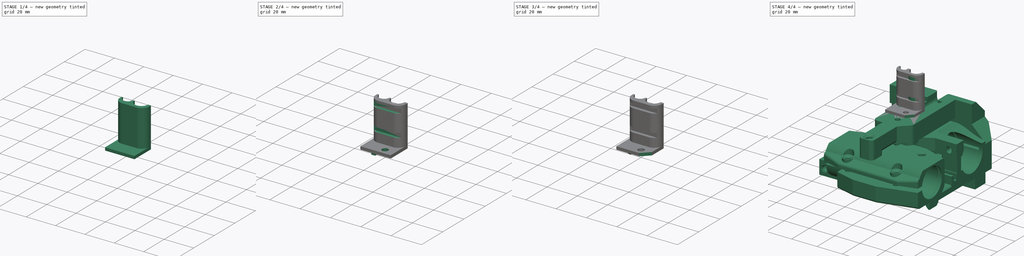
[diagram: build sequence overview — one tinted view per stage of 4, left to right]
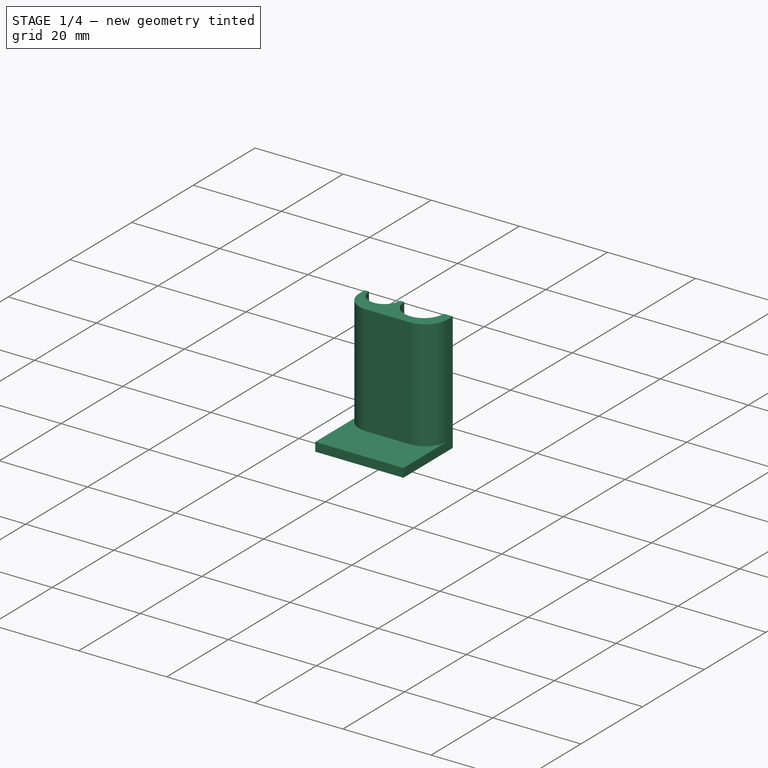
[diagram: stage 1 of 4 — iso view after this stage's code; geometry added in this stage tinted green]
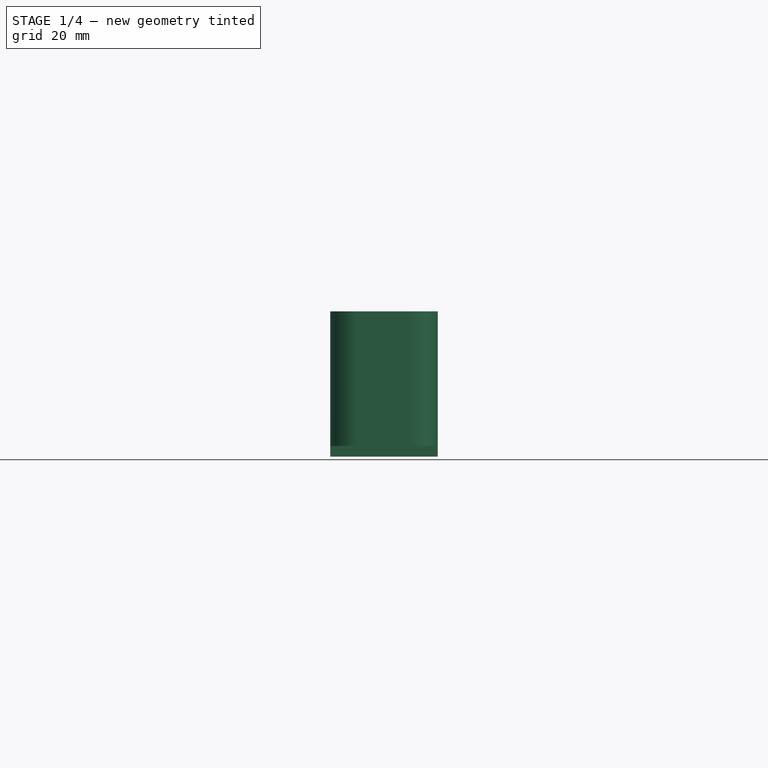
[diagram: stage 1 of 4 — front view after this stage's code; geometry added in this stage tinted green]
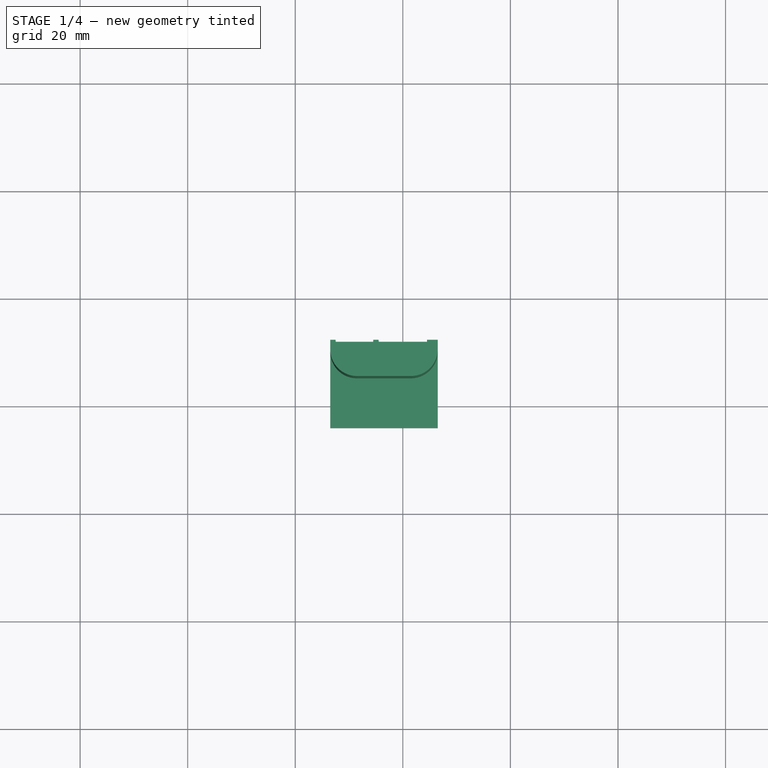
[diagram: stage 1 of 4 — top view after this stage's code; geometry added in this stage tinted green]
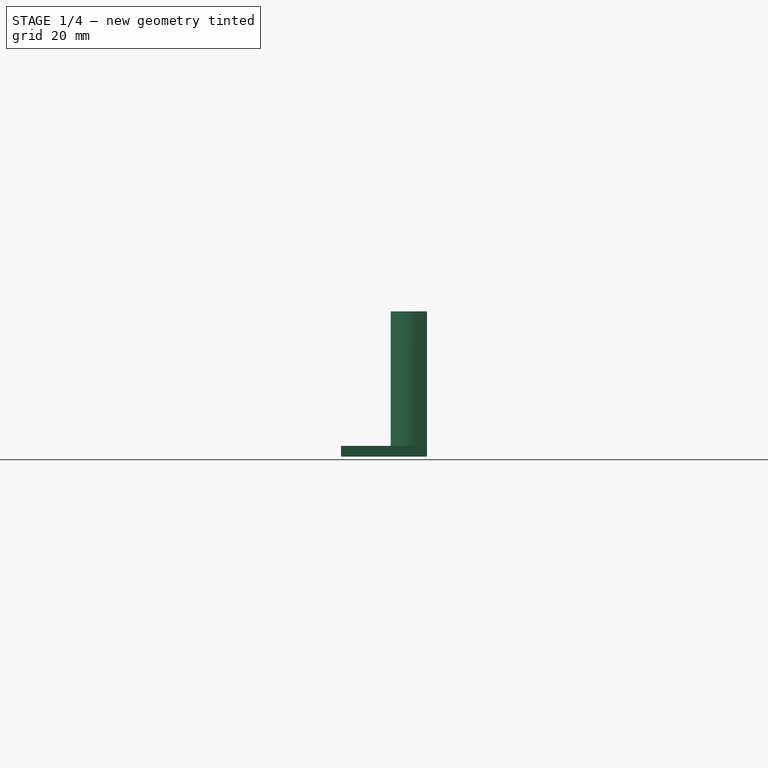
[diagram: stage 1 of 4 — right view after this stage's code; geometry added in this stage tinted green]
FCSTD DOCUMENT  (FreeCAD 0.17R13528 (Git))
Label: extruder_harness_cable_guide_v0.1
License: All rights reserved
LicenseURL: http://en.wikipedia.org/wiki/All_rights_reserved
objects: Sketcher::SketchObject×7, PartDesign::Pocket×4, Part::FeaturePython×2, App::FeaturePython×2, PartDesign::Pad×2, PartDesign::Chamfer×2, PartDesign::Fillet×2, PartDesign::Body×1
note: 26 computed .brp shape members not serialized (recipe doc carries the construction recipe); baked Part::Feature solids carry a one-line shape summary decoded from their .brp

FEATURE [App::FeaturePython] circularEdge_001  label="circularEdge_001__extruder_harness_cable_guide_001"  # a2plus constraint (typed FeaturePython)
  Object1 = b_x_carriage_cover_v1_6_1_001_
  Object2 = b_extruder_harness_cable_guide_001_
  ParentTreeObject = -> b_x_carriage_cover_v1_6_1_001_
  SubElement1 = Edge1492
  SubElement2 = Edge83
  Type = circularEdge
  directionConstraint = 0
  lockRotation = false
  offset = 0
FEATURE [App::FeaturePython] circularEdge_001_mirror  label="circularEdge_001__x_carriage_cover_v1.6.1_001"  # a2plus constraint (typed FeaturePython)
  Object1 = b_x_carriage_cover_v1_6_1_001_
  Object2 = b_extruder_harness_cable_guide_001_
  ParentTreeObject = -> b_extruder_harness_cable_guide_001_
  SubElement1 = Edge1492
  SubElement2 = Edge83
  Type = circularEdge
  directionConstraint = 0
  lockRotation = false
  offset = 0
FEATURE [PartDesign::Pad] Pad
  Length = 27
  Length2 = 100
  Profile = -> Sketch
  Refine = true
  Type = 0
FEATURE [Sketcher::SketchObject] Sketch001
  MapMode = 5
  Placement = pos=(0,0,27) rot=(0,0,1;0rad)
  Support = -> [Pad]
  sketch-geometry (2):
    g0: Circle CenterX=0 CenterY=12 CenterZ=0 NormalX=0 NormalY=0 NormalZ=1 AngleXU=0 Radius=4.5
    g1: Circle CenterX=-9 CenterY=12 CenterZ=0 NormalX=0 NormalY=0 NormalZ=1 AngleXU=0 Radius=3.5
  constraints (6):
    c: PointOnObject(g0,g-2)
    c: DistanceY(g0) = 12
    c: Radius(g1) = 3.5
    c: Radius(g0) = 4.5
    c: DistanceX(g1) = -9
    c: DistanceY(g1) = 12
FEATURE [PartDesign::Pocket] Pocket
  BaseFeature = -> Pad
  Length = 22
  Length2 = 100
  Profile = -> Sketch001
  Refine = true
  Type = 0
FEATURE [Sketcher::SketchObject] Sketch002
  MapMode = 5
  Placement = pos=(0,0,27) rot=(0,0,1;0rad)
  Support = -> [Pocket]
  sketch-geometry (7):
    g0: ArcOfCircle CenterX=-8.5 CenterY=10.25 CenterZ=0 NormalX=0 NormalY=0 NormalZ=1 AngleXU=0 Radius=5 StartAngle=3.14159 EndAngle=4.71239
    g1: ArcOfCircle CenterX=1.5 CenterY=10.25 CenterZ=0 NormalX=0 NormalY=0 NormalZ=1 AngleXU=0 Radius=5 StartAngle=4.71239 EndAngle=6.28319
    g2: LineSegment StartX=1.5 StartY=5.25 StartZ=0 EndX=-8.50001 EndY=5.25 EndZ=0
    g3: LineSegment StartX=6.5 StartY=10.25 StartZ=0 EndX=6.5 EndY=-4 EndZ=0
    g4: LineSegment StartX=6.5 StartY=-4 StartZ=0 EndX=-13.5 EndY=-4 EndZ=0
    g5: LineSegment StartX=-13.5 StartY=-4 StartZ=0 EndX=-13.5 EndY=10.25 EndZ=0
    g6: LineSegment [constr] StartX=1.5 StartY=10.25 StartZ=0 EndX=-8.5 EndY=10.25 EndZ=0
  constraints (20):
    c: Coincident(g2,g1)
    c: DistanceX(g1) = 1.5
    c: DistanceY(g1) = 10.25
    c: Vertical(g3)
    c: Coincident(g3,g4)
    c: Horizontal(g4)
    c: Coincident(g4,g5)
    c: Vertical(g5)
    c: Coincident(g6,g1)
    c: Coincident(g6,g0)
    c: Coincident(g0,g2)
    c: Tangent(g2,g0)
    c: Tangent(g2,g1)
    c: DistanceX(g3) = 6.5
    c: DistanceY(g3) = -4
    c: DistanceX(g4,g4) = 20
    c: Tangent(g5,g0) = 1.5708
    c: Tangent(g1,g3) = 1.5708
    c: Horizontal(g2)
    c: Horizontal(g6)
FEATURE [PartDesign::Pocket] Pocket001
  BaseFeature = -> Pocket
  Length = 25
  Length2 = 100
  Profile = -> Sketch002
  Refine = true
  Type = 0
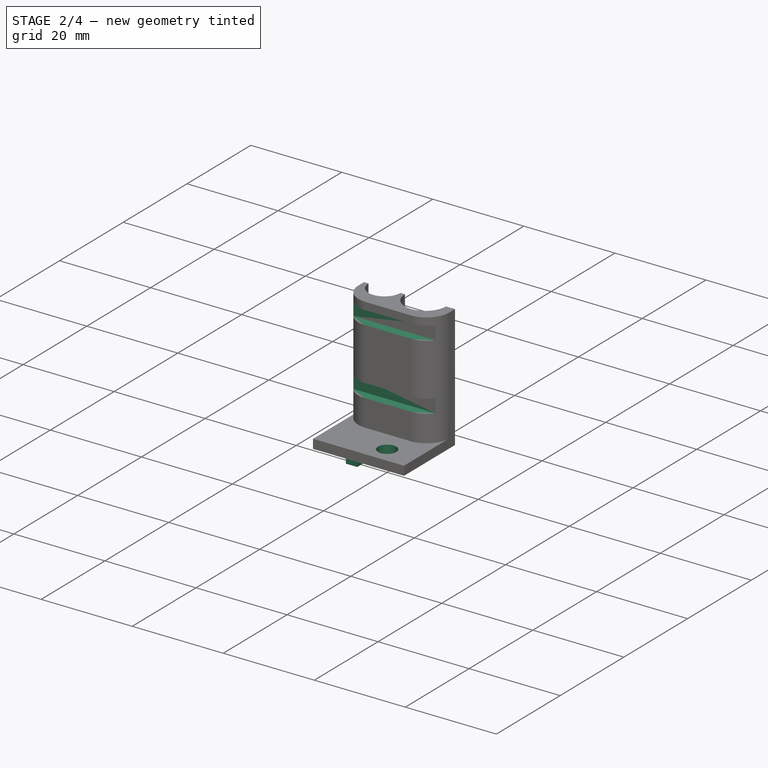
[diagram: stage 2 of 4 — iso view after this stage's code; geometry added in this stage tinted green]
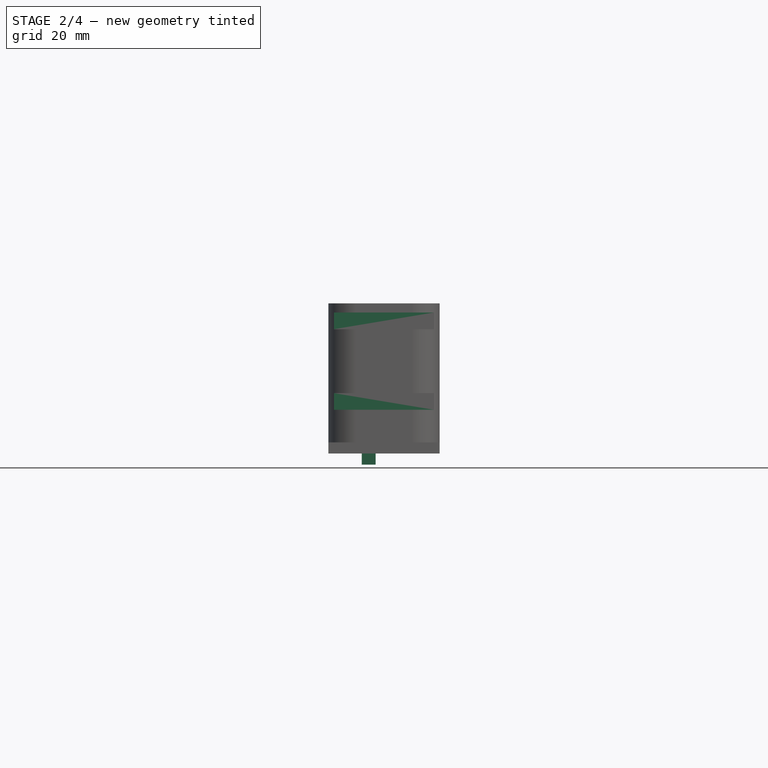
[diagram: stage 2 of 4 — front view after this stage's code; geometry added in this stage tinted green]
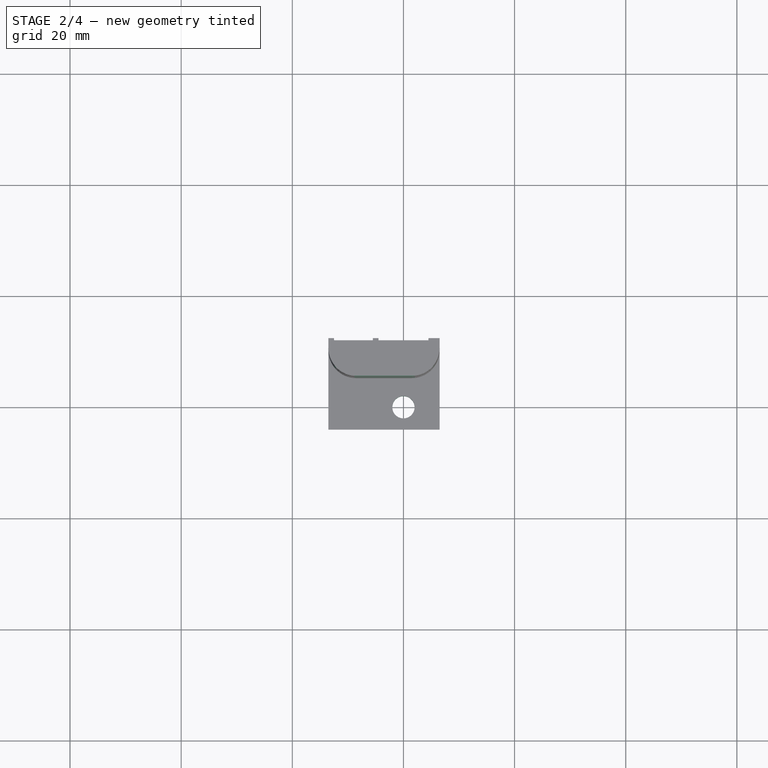
[diagram: stage 2 of 4 — top view after this stage's code; geometry added in this stage tinted green]
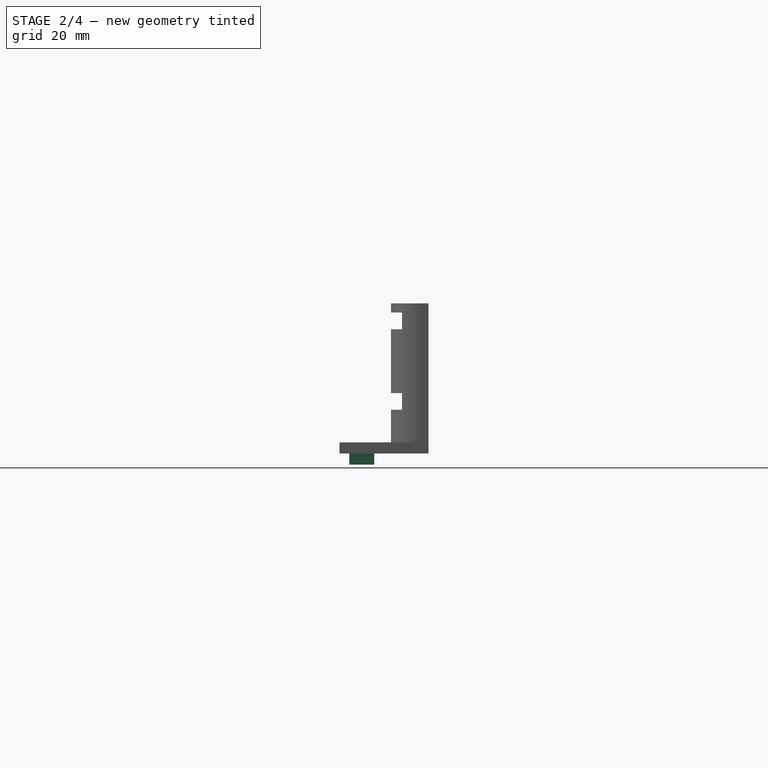
[diagram: stage 2 of 4 — right view after this stage's code; geometry added in this stage tinted green]
FEATURE [Sketcher::SketchObject] Sketch003
  MapMode = 5
  Placement = pos=(0,0,2) rot=(0,0,1;0rad)
  Support = -> [Pocket001]
FEATURE [Sketcher::SketchObject] Sketch004
  MapMode = 5
  Placement = pos=(-13.5,0,0) rot=(0.57735,-0.57735,-0.57735;2.0944rad)
  Support = -> [Pocket001]
  sketch-geometry (12):
    g0: LineSegment StartX=-5 StartY=10.8635 StartZ=0 EndX=-7.25 EndY=10.8635 EndZ=0
    g1: LineSegment StartX=-7.25 StartY=10.8635 StartZ=0 EndX=-7.25 EndY=7.86353 EndZ=0
    g2: LineSegment StartX=-7.25 StartY=7.86353 StartZ=0 EndX=-5 EndY=7.86353 EndZ=0
    g3: LineSegment StartX=-5 StartY=7.86353 StartZ=0 EndX=-5 EndY=10.8635 EndZ=0
    g4: LineSegment StartX=-5 StartY=25.3635 StartZ=0 EndX=-7.25 EndY=25.3635 EndZ=0
    g5: LineSegment StartX=-7.25 StartY=25.3635 StartZ=0 EndX=-7.25 EndY=22.3635 EndZ=0
    g6: LineSegment StartX=-7.25 StartY=22.3635 StartZ=0 EndX=-5 EndY=22.3635 EndZ=0
    g7: LineSegment StartX=-5 StartY=22.3635 StartZ=0 EndX=-5 EndY=25.3635 EndZ=0
    g8: LineSegment [constr] StartX=-7.25 StartY=22.3635 StartZ=0 EndX=-5 EndY=22.3635 EndZ=0
    g9: LineSegment [constr] StartX=-5 StartY=22.3635 StartZ=0 EndX=-5 EndY=10.8635 EndZ=0
    g10: LineSegment [constr] StartX=-5 StartY=10.8635 StartZ=0 EndX=-7.25 EndY=10.8635 EndZ=0
    g11: LineSegment [constr] StartX=-7.25 StartY=10.8635 StartZ=0 EndX=-7.25 EndY=22.3635 EndZ=0
  constraints (32):
    c: Coincident(g0,g1)
    c: Coincident(g1,g2)
    c: Coincident(g2,g3)
    c: Coincident(g3,g0)
    c: Horizontal(g0)
    c: Horizontal(g2)
    c: Vertical(g1)
    c: Vertical(g3)
    c: Coincident(g4,g5)
    c: Coincident(g5,g6)
    c: Coincident(g6,g7)
    c: Coincident(g7,g4)
    c: Horizontal(g4)
    c: Horizontal(g6)
    c: Vertical(g5)
    c: Vertical(g7)
    c: DistanceX(g6) = -5
    c: DistanceY(g6) = 22.3635
    c: DistanceX(g6,g6) = 2.25
    c: DistanceY(g7,g7) = 3
    c: Equal(g3,g7)
    c: Equal(g4,g0)
    c: Coincident(g8,g9)
    c: Coincident(g9,g10)
    c: Coincident(g10,g11)
    c: Coincident(g11,g8)
    c: Vertical(g9)
    c: Coincident(g8,g5)
    c: Coincident(g9,g0)
    c: Coincident(g0,g10)
    c: Coincident(g6,g8)
    c: DistanceY(g9,g9) = 11.5
FEATURE [PartDesign::Pocket] Pocket002
  BaseFeature = -> Pocket001
  Length = 5
  Length2 = 100
  Profile = -> Sketch004
  Refine = true
  Type = 1
FEATURE [Sketcher::SketchObject] Sketch005
  MapMode = 5
  Placement = pos=(0,0,0) rot=(1,0,0;3.14159rad)
  sketch-geometry (1):
    g0: Circle CenterX=0 CenterY=0 CenterZ=0 NormalX=0 NormalY=0 NormalZ=1 AngleXU=0 Radius=2
  constraints (2):
    c: Coincident(g0,g-1)
    c: Radius(g0) = 2
FEATURE [Sketcher::SketchObject] Sketch006
  MapMode = 5
  Placement = pos=(0,0,0) rot=(1,0,0;3.14159rad)
  sketch-geometry (4):
    g0: LineSegment StartX=-7.5 StartY=2.25 StartZ=0 EndX=-5 EndY=2.25 EndZ=0
    g1: LineSegment StartX=-5 StartY=2.25 StartZ=0 EndX=-5 EndY=-2.25 EndZ=0
    g2: LineSegment StartX=-5 StartY=-2.25 StartZ=0 EndX=-7.5 EndY=-2.25 EndZ=0
    g3: LineSegment StartX=-7.5 StartY=-2.25 StartZ=0 EndX=-7.5 EndY=2.25 EndZ=0
  constraints (12):
    c: Coincident(g0,g1)
    c: Coincident(g1,g2)
    c: Coincident(g2,g3)
    c: Coincident(g3,g0)
    c: Horizontal(g0)
    c: Horizontal(g2)
    c: Vertical(g1)
    c: Vertical(g3)
    c: DistanceX(g1) = -5
    c: DistanceY(g1) = -2.25
    c: DistanceY(g1,g1) = 4.5
    c: DistanceX(g0,g0) = 2.5
FEATURE [PartDesign::Pocket] Pocket003
  BaseFeature = -> Pocket002
  Length = 5
  Length2 = 100
  Profile = -> Sketch005
  Refine = true
  Type = 0
FEATURE [PartDesign::Pad] Pad001
  BaseFeature = -> Pocket003
  Length = 2
  Length2 = 100
  Profile = -> Sketch006
  Refine = true
  Type = 0
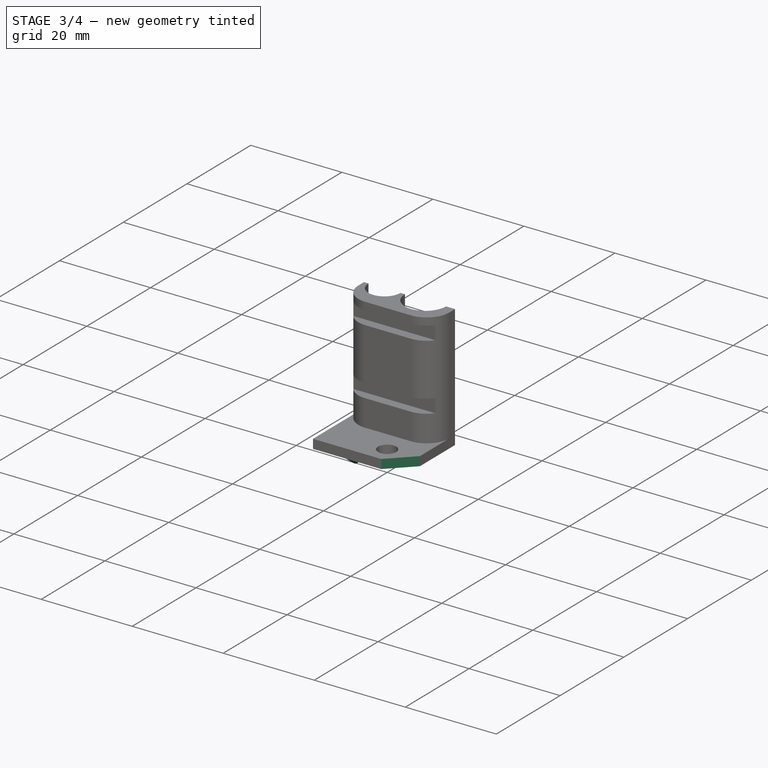
[diagram: stage 3 of 4 — iso view after this stage's code; geometry added in this stage tinted green]
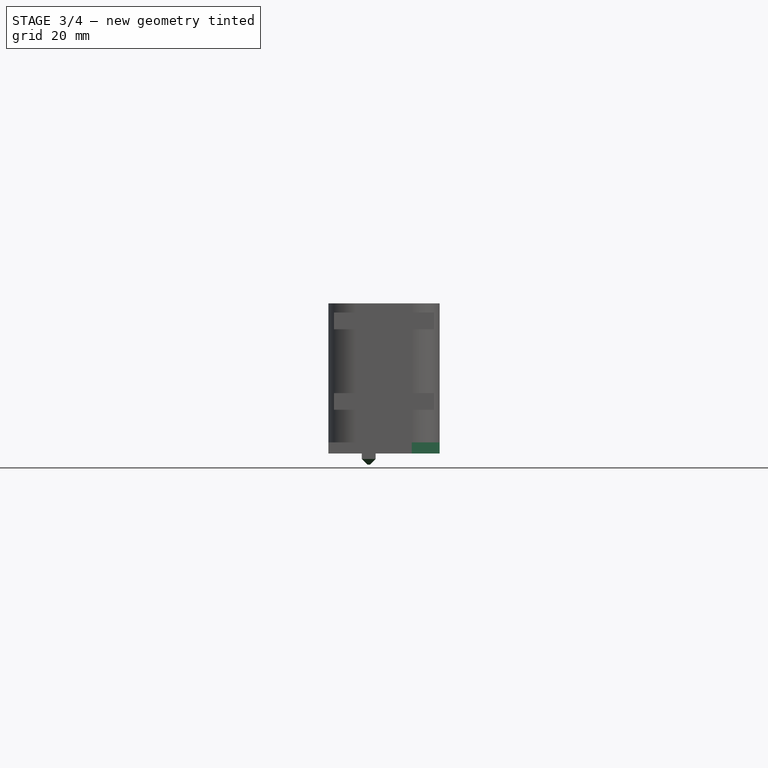
[diagram: stage 3 of 4 — front view after this stage's code; geometry added in this stage tinted green]
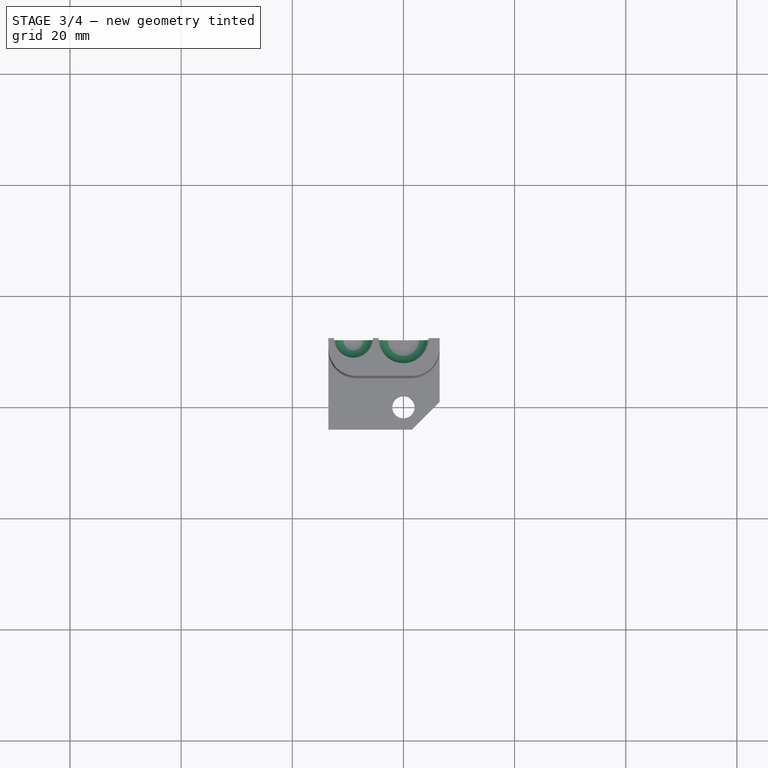
[diagram: stage 3 of 4 — top view after this stage's code; geometry added in this stage tinted green]
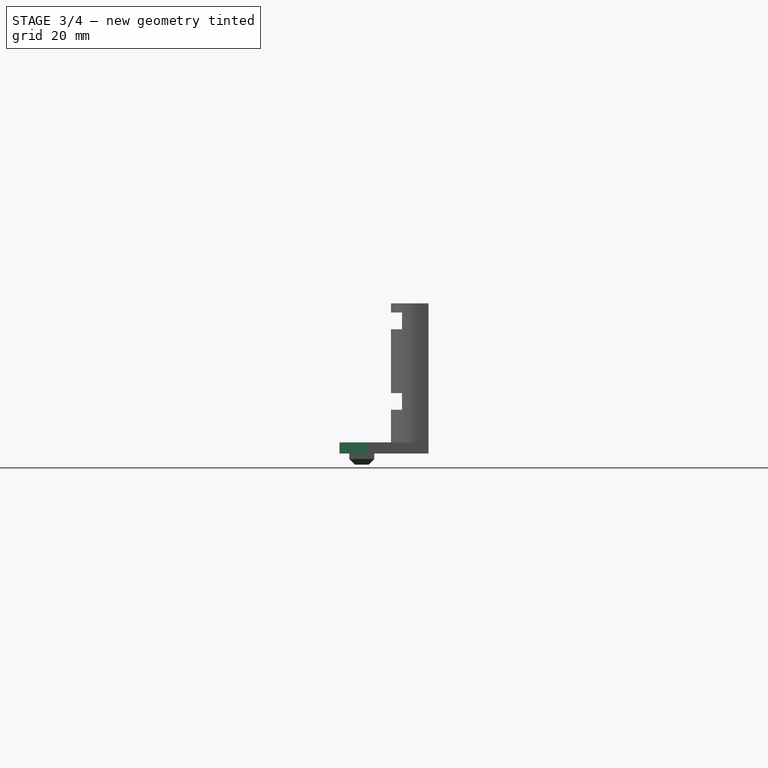
[diagram: stage 3 of 4 — right view after this stage's code; geometry added in this stage tinted green]
FEATURE [PartDesign::Chamfer] Chamfer
  Base = -> Pad001 [Face20]
  BaseFeature = -> Pad001
  Size = 1
FEATURE [PartDesign::Chamfer] Chamfer001
  Base = -> Chamfer [Edge26]
  BaseFeature = -> Chamfer
  Size = 5
FEATURE [PartDesign::Fillet] Fillet
  Base = -> Chamfer001 [Edge70,Edge69]
  BaseFeature = -> Chamfer001
  Radius = 3
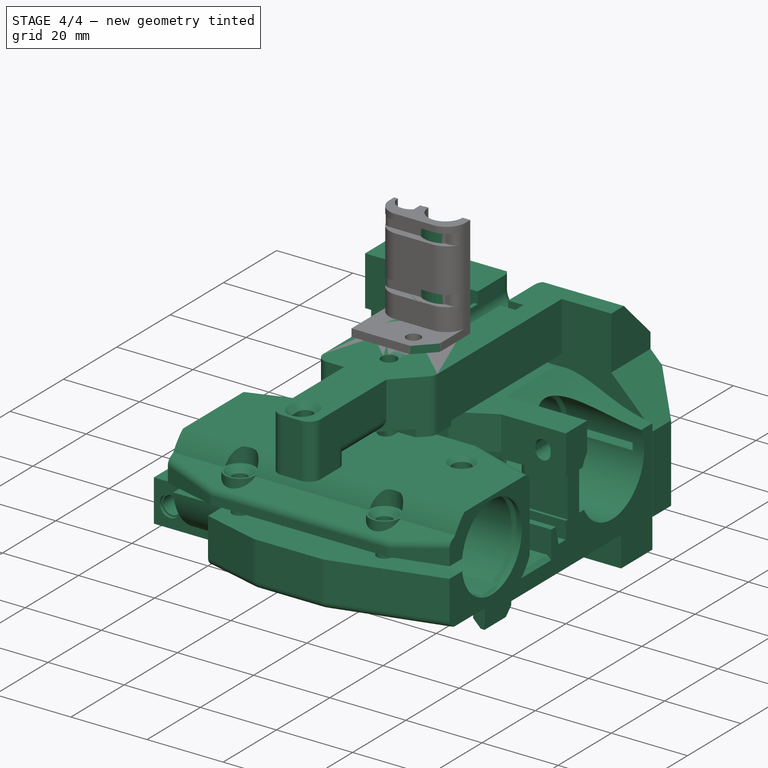
[diagram: stage 4 of 4 — iso view after this stage's code; geometry added in this stage tinted green]
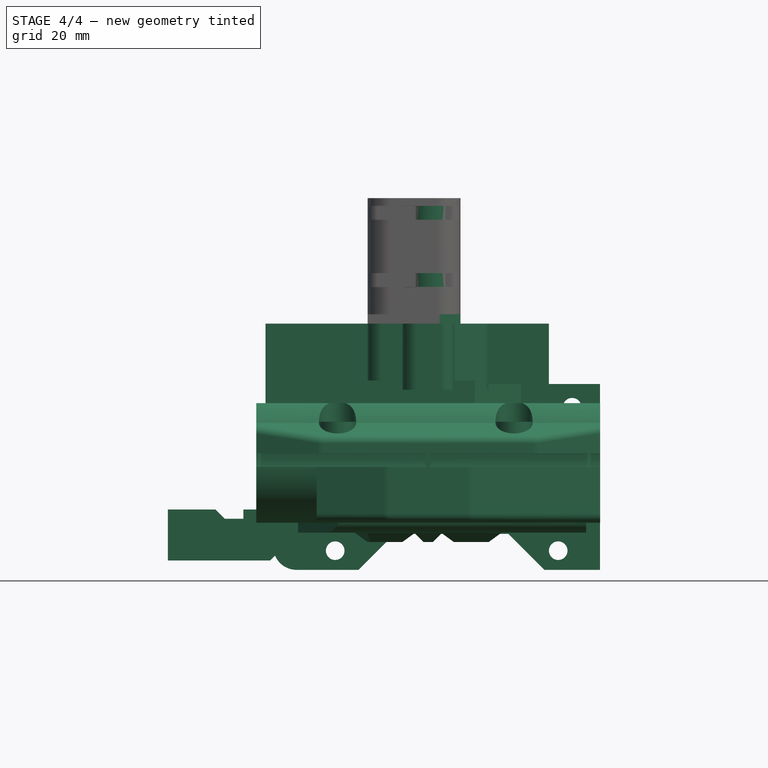
[diagram: stage 4 of 4 — front view after this stage's code; geometry added in this stage tinted green]
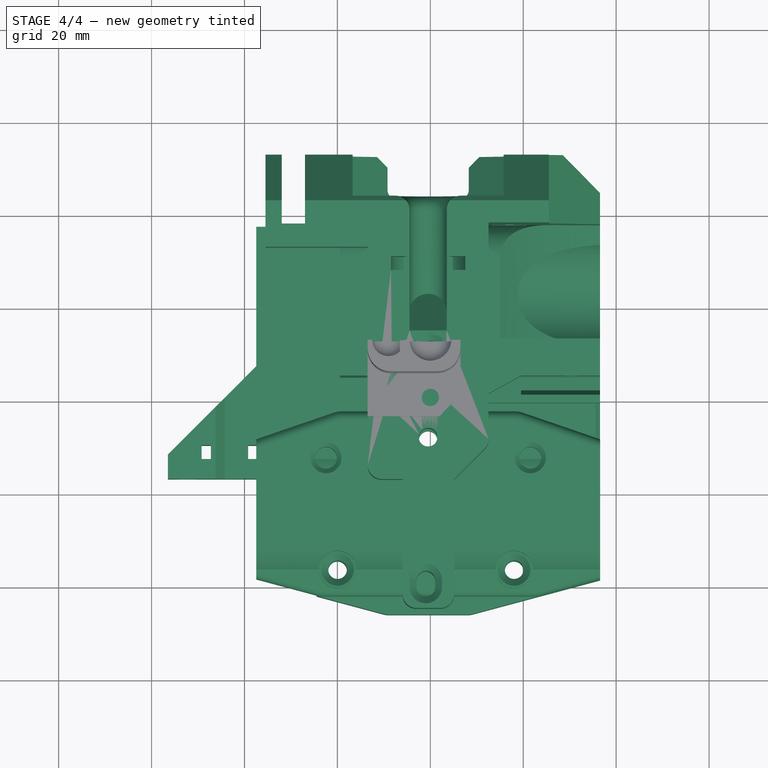
[diagram: stage 4 of 4 — top view after this stage's code; geometry added in this stage tinted green]
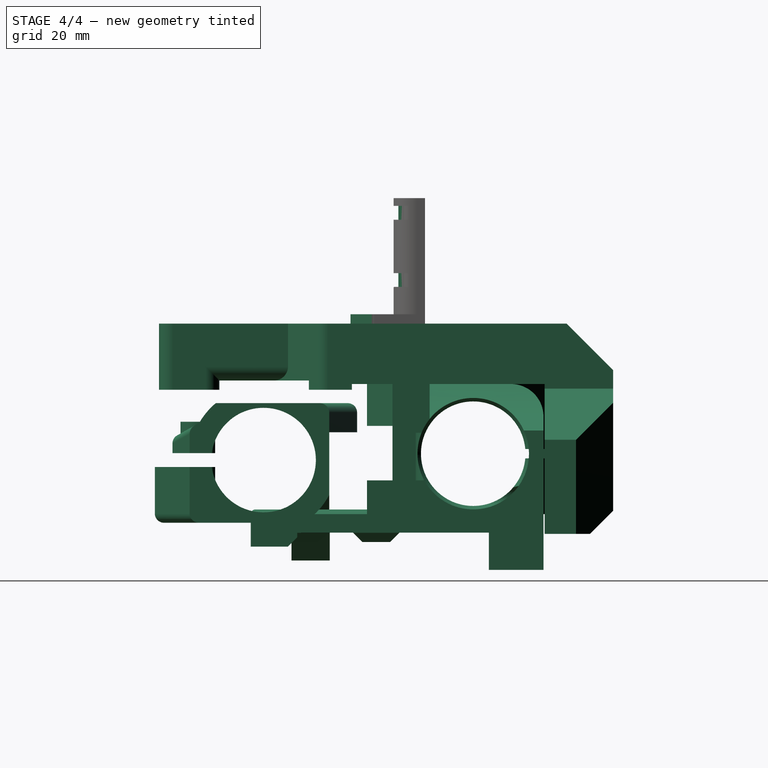
[diagram: stage 4 of 4 — right view after this stage's code; geometry added in this stage tinted green]
FEATURE [Part::FeaturePython] b_extruder_harness_cable_guide_001_  label="extruder_harness_cable_guide_001"  # a2plus imported part (geometry in sourceFile) (typed FeaturePython)
  a2p_Version = V0.1
  fixedPosition = true
  sourceFile = .\extruder_harness_cable_guide.fcstd
  subassemblyImport = false
  timeLastImport = 1.58388e+09
  updateColors = true
FEATURE [Sketcher::SketchObject] Sketch
  MapMode = 5
  Support = -> [XY_Plane]
  sketch-geometry (4):
    g0: LineSegment StartX=-13.5 StartY=-4 StartZ=0 EndX=6.5 EndY=-4 EndZ=0
    g1: LineSegment StartX=6.5 StartY=-4 StartZ=0 EndX=6.5 EndY=12 EndZ=0
    g2: LineSegment StartX=6.5 StartY=12 StartZ=0 EndX=-13.5 EndY=12 EndZ=0
    g3: LineSegment StartX=-13.5 StartY=12 StartZ=0 EndX=-13.5 EndY=-4 EndZ=0
  constraints (12):
    c: Horizontal(g0)
    c: Vertical(g1)
    c: Coincident(g1,g2)
    c: Horizontal(g2)
    c: Coincident(g2,g3)
    c: Vertical(g3)
    c: Coincident(g0,g3)
    c: DistanceX(g0) = -13.5
    c: DistanceY(g0) = -4
    c: DistanceY(g3,g3) = 16
    c: Coincident(g0,g1)
    c: DistanceX(g2,g2) = 20
FEATURE [Part::FeaturePython] b_x_carriage_cover_v1_6_1_001_  label="x_carriage_cover_v1.6.1_001"  # a2plus imported part (geometry in sourceFile) (typed FeaturePython)
  Placement = pos=(36.5272,52.4959,-1.88706e-05) rot=(0,1,0;3.14159rad)
  a2p_Version = V0.1
  fixedPosition = false
  sourceFile = .\..\x_carriage_cover\x_carriage_cover_v1.6.1.FCStd
  subassemblyImport = false
  timeLastImport = 1.58283e+09
  updateColors = true
FEATURE [PartDesign::Fillet] Fillet001
  Base = -> Fillet [Edge50,Edge46,Edge56,Edge60]
  BaseFeature = -> Fillet
  Radius = 2
FEATURE [PartDesign::Body] Body
  Group = -> [Sketch,Pad,Sketch001,Pocket,Sketch002,Pocket001,Sketch003,Sketch004,Pocket002,Sketch005,Sketch006,Pocket003,Pad001,Chamfer,Chamfer001,Fillet,Fillet001]
  Origin = -> Origin
  Tip = -> Fillet001
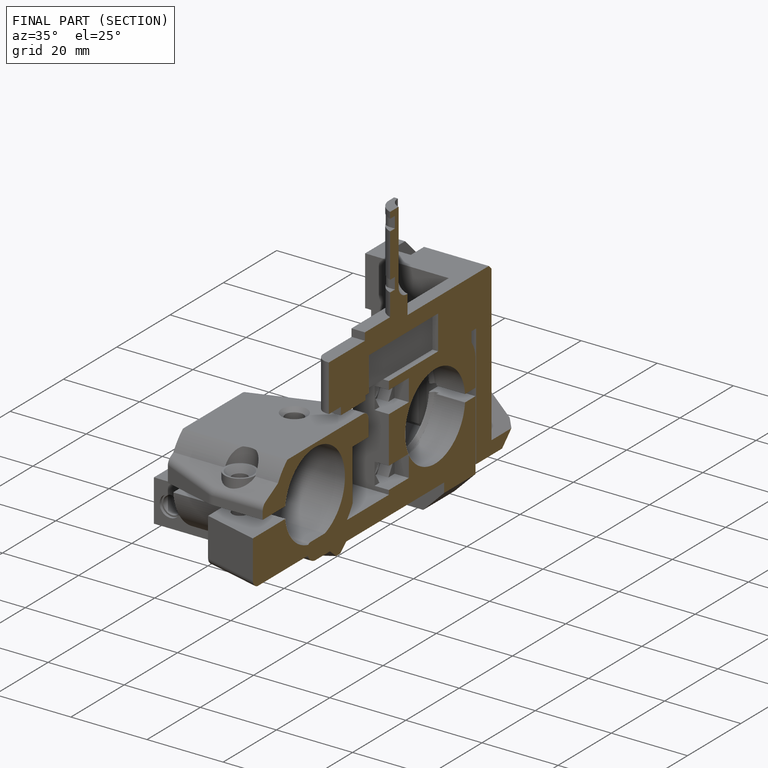
[diagram: finished part — half-section view (interior)]
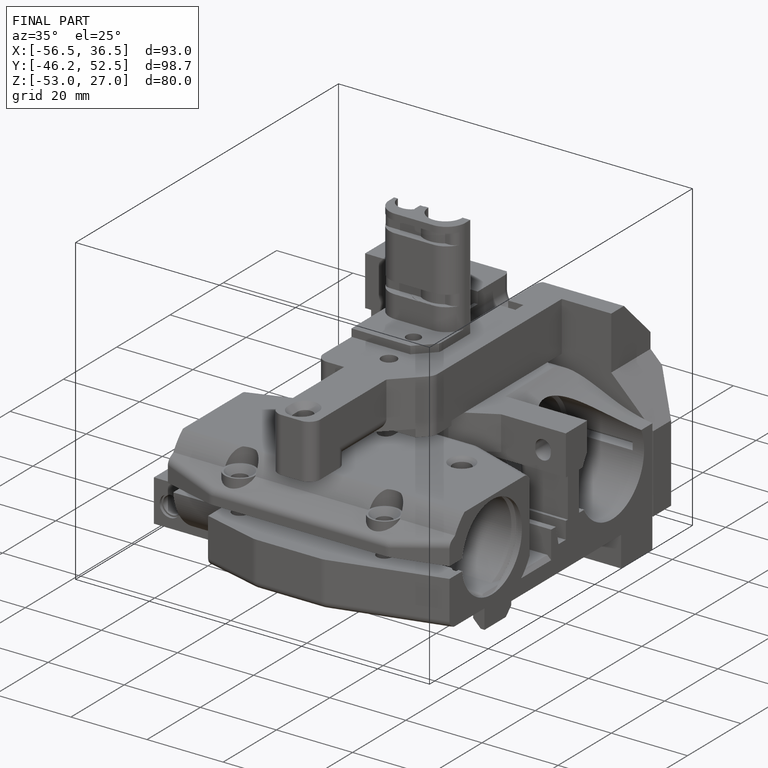
[diagram: finished part — iso view with bounding-box wireframe]
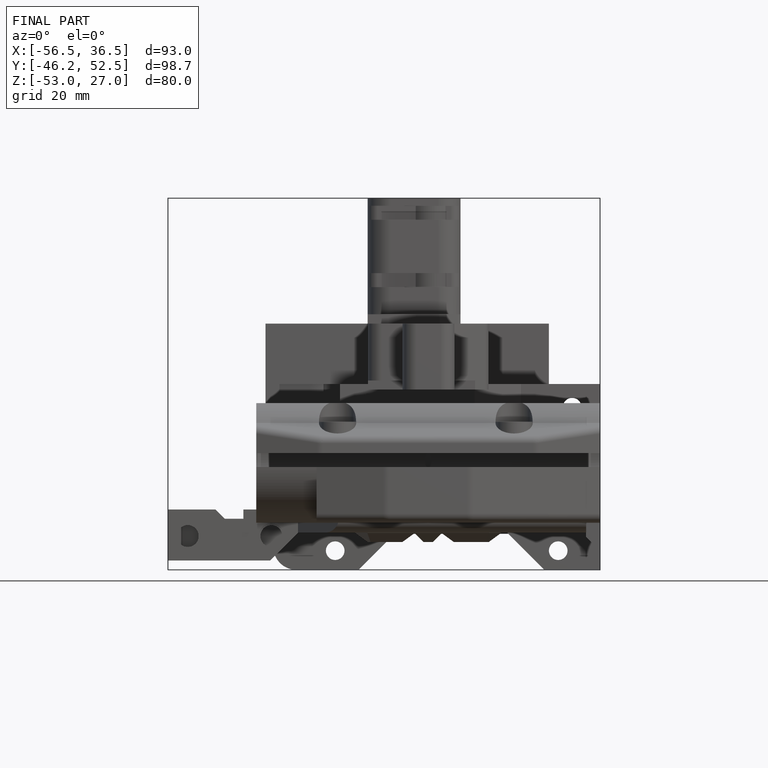
[diagram: finished part — front view with bounding-box wireframe]
